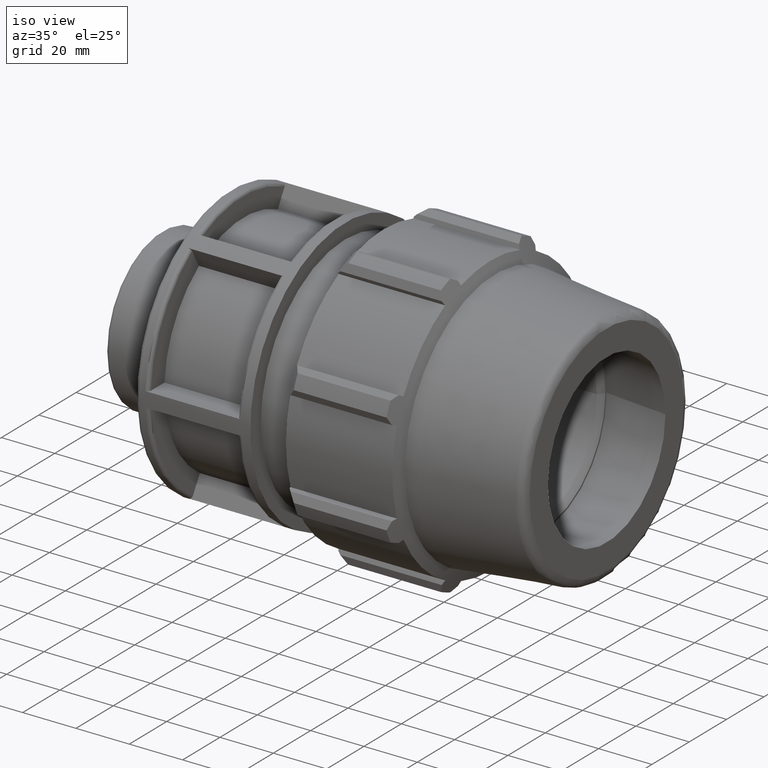
[diagram: clean part render]
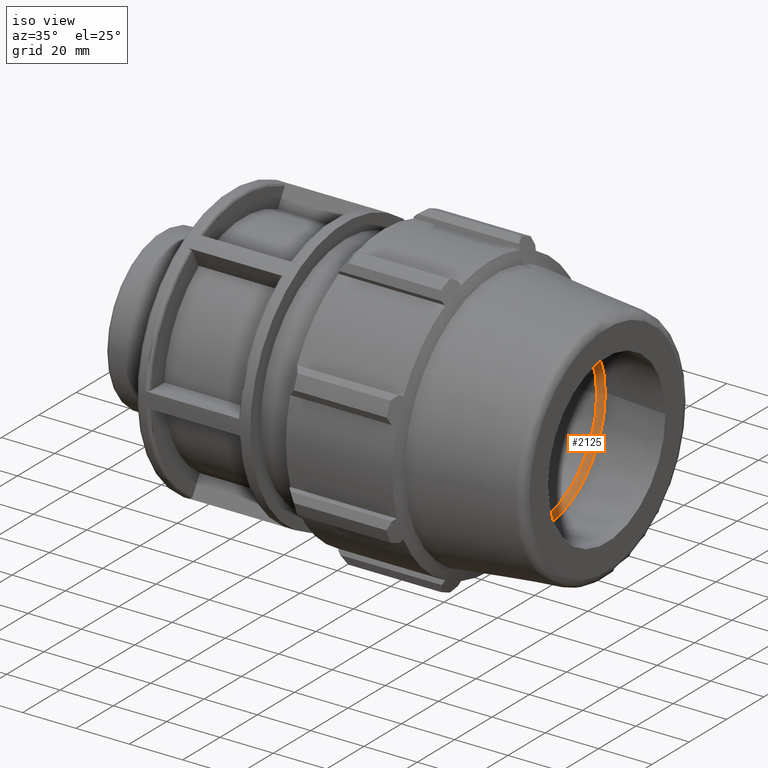
[diagram: same view with one face highlighted and labeled with its STEP entity id]
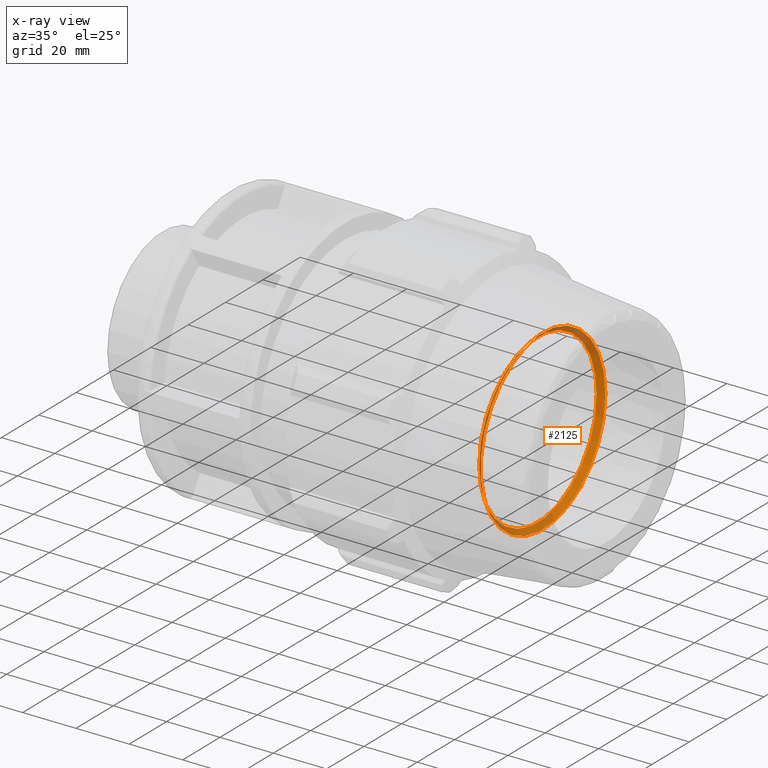
[diagram: x-ray of the same camera — body ghosted, the highlighted face saturated]
A machine part, iso view. The second image highlights one B-rep face of the part: STEP entity #2125.
The next image is the same camera in x-ray: the body ghosted, the highlighted face saturated — about 35% of this face is hidden behind the body in this view.
In plain terms, the highlighted conical surface has half-angle 45 deg.
Its self-contained STEP definition (entity closure, byte-faithful):
#54=CONICAL_SURFACE('',#2312,32.445,45.);
#474=FACE_BOUND('',#687,.T.);
#555=FACE_OUTER_BOUND('',#686,.T.);
#686=EDGE_LOOP('',(#1697));
#687=EDGE_LOOP('',(#1698));
#812=CIRCLE('',#2313,33.39);
#813=CIRCLE('',#2314,31.5);
#1006=VERTEX_POINT('',#3683);
#1007=VERTEX_POINT('',#3685);
#1266=EDGE_CURVE('',#1006,#1006,#812,.T.);
#1267=EDGE_CURVE('',#1007,#1007,#813,.T.);
#1697=ORIENTED_EDGE('',*,*,#1266,.T.);
#1698=ORIENTED_EDGE('',*,*,#1267,.T.);
#2125=ADVANCED_FACE('',(#555,#474),#54,.F.);
#2312=AXIS2_PLACEMENT_3D('',#3682,#2773,#2774);
#2313=AXIS2_PLACEMENT_3D('',#3684,#2775,#2776);
#2314=AXIS2_PLACEMENT_3D('',#3686,#2777,#2778);
#2773=DIRECTION('center_axis',(1.,0.,0.));
#2774=DIRECTION('ref_axis',(0.,-1.,0.));
#2775=DIRECTION('center_axis',(1.,0.,0.));
#2776=DIRECTION('ref_axis',(0.,-1.,0.));
#2777=DIRECTION('center_axis',(-1.,0.,0.));
#2778=DIRECTION('ref_axis',(0.,-1.,0.));
#3682=CARTESIAN_POINT('Origin',(142.197857142857,0.,0.));
#3683=CARTESIAN_POINT('',(143.142857142857,33.39,4.08909566235301E-15));
#3684=CARTESIAN_POINT('Origin',(143.142857142857,0.,0.));
#3685=CARTESIAN_POINT('',(141.252857142857,31.5,-3.85763741731416E-15));
#3686=CARTESIAN_POINT('Origin',(141.252857142857,0.,0.));